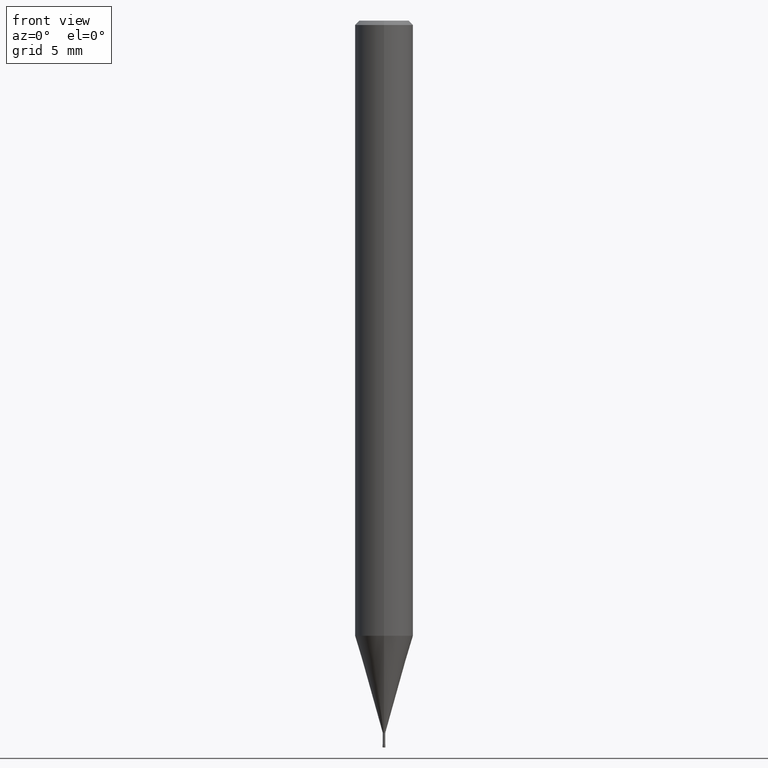
[diagram: clean part render]
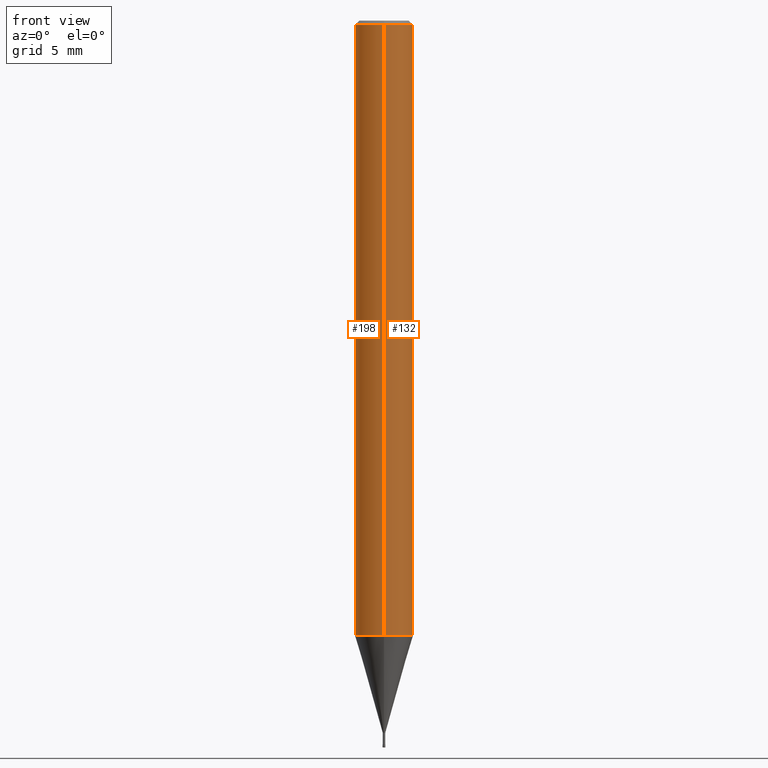
[diagram: same view with one multi-face feature highlighted, each face labeled with its STEP entity id]
A machine part, front view. The highlighted faces form ONE feature: a constant-radius fillet chain: 2 tangent blend faces with common blend radius 2 mm. The faces share edges in the B-rep.
Their STEP definitions:
[1] entity #132 (Cylinder):
#132=ADVANCED_FACE('',(#293),#294,.T.);
#146=EDGE_CURVE('',#222,#194,#309,.T.);
#154=EDGE_CURVE('',#204,#194,#318,.T.);
#176=VERTEX_POINT('',#343);
#194=VERTEX_POINT('',#362);
#204=VERTEX_POINT('',#373);
#222=VERTEX_POINT('',#392);
#224=EDGE_CURVE('',#176,#204,#394,.T.);
#230=EDGE_CURVE('',#222,#176,#401,.T.);
#293=FACE_OUTER_BOUND('',#460,.T.);
#294=CYLINDRICAL_SURFACE('',#461,2.0);
#309=CIRCLE('',#481,2.0);
#318=LINE('',#493,#494);
#343=CARTESIAN_POINT('',(0.0,2.0,-42.322));
#362=CARTESIAN_POINT('',(2.44921270764475E-016,-2.0,-0.299999999999997));
#373=CARTESIAN_POINT('',(2.44921270764475E-016,-2.0,-42.322));
#392=CARTESIAN_POINT('',(0.0,2.0,-0.299999999999997));
#394=CIRCLE('',#591,2.0);
#401=LINE('',#601,#602);
#460=EDGE_LOOP('',(#668,#669,#670,#671));
#461=AXIS2_PLACEMENT_3D('',#672,#673,#674);
#481=AXIS2_PLACEMENT_3D('',#695,#696,#697);
#493=CARTESIAN_POINT('',(2.44921270764475E-016,-2.0,-21.311));
#494=VECTOR('',#707,1.0);
#591=AXIS2_PLACEMENT_3D('',#793,#794,#795);
#601=CARTESIAN_POINT('',(-2.44921270764475E-016,2.0,-21.311));
#602=VECTOR('',#805,1.0);
#668=ORIENTED_EDGE('',*,*,#230,.F.);
#669=ORIENTED_EDGE('',*,*,#146,.T.);
#670=ORIENTED_EDGE('',*,*,#154,.F.);
#671=ORIENTED_EDGE('',*,*,#224,.F.);
#672=CARTESIAN_POINT('',(0.0,0.0,-21.311));
#673=DIRECTION('',(-0.0,-0.0,1.0));
#674=DIRECTION('',(0.0,1.0,0.0));
#695=CARTESIAN_POINT('',(0.0,0.0,-0.299999999999997));
#696=DIRECTION('',(0.0,0.0,-1.0));
#697=DIRECTION('',(0.0,1.0,0.0));
#707=DIRECTION('',(-0.0,-0.0,1.0));
#793=CARTESIAN_POINT('',(0.0,0.0,-42.322));
#794=DIRECTION('',(0.0,0.0,-1.0));
#795=DIRECTION('',(0.0,1.0,0.0));
#805=DIRECTION('',(0.0,0.0,-1.0));
[2] entity #198 (Cylinder):
#138=EDGE_CURVE('',#204,#176,#301,.T.);
#154=EDGE_CURVE('',#204,#194,#318,.T.);
#176=VERTEX_POINT('',#343);
#194=VERTEX_POINT('',#362);
#198=ADVANCED_FACE('',(#366),#367,.T.);
#204=VERTEX_POINT('',#373);
#210=EDGE_CURVE('',#194,#222,#379,.T.);
#222=VERTEX_POINT('',#392);
#230=EDGE_CURVE('',#222,#176,#401,.T.);
#301=CIRCLE('',#469,2.0);
#318=LINE('',#493,#494);
#343=CARTESIAN_POINT('',(0.0,2.0,-42.322));
#362=CARTESIAN_POINT('',(2.44921270764475E-016,-2.0,-0.299999999999997));
#366=FACE_OUTER_BOUND('',#556,.T.);
#367=CYLINDRICAL_SURFACE('',#557,2.0);
#373=CARTESIAN_POINT('',(2.44921270764475E-016,-2.0,-42.322));
#379=CIRCLE('',#571,2.0);
#392=CARTESIAN_POINT('',(0.0,2.0,-0.299999999999997));
#401=LINE('',#601,#602);
#469=AXIS2_PLACEMENT_3D('',#683,#684,#685);
#493=CARTESIAN_POINT('',(2.44921270764475E-016,-2.0,-21.311));
#494=VECTOR('',#707,1.0);
#556=EDGE_LOOP('',(#767,#768,#769,#770));
#557=AXIS2_PLACEMENT_3D('',#771,#772,#773);
#571=AXIS2_PLACEMENT_3D('',#777,#778,#779);
#601=CARTESIAN_POINT('',(-2.44921270764475E-016,2.0,-21.311));
#602=VECTOR('',#805,1.0);
#683=CARTESIAN_POINT('',(0.0,0.0,-42.322));
#684=DIRECTION('',(0.0,0.0,-1.0));
#685=DIRECTION('',(0.0,1.0,0.0));
#707=DIRECTION('',(-0.0,-0.0,1.0));
#767=ORIENTED_EDGE('',*,*,#230,.T.);
#768=ORIENTED_EDGE('',*,*,#138,.F.);
#769=ORIENTED_EDGE('',*,*,#154,.T.);
#770=ORIENTED_EDGE('',*,*,#210,.T.);
#771=CARTESIAN_POINT('',(0.0,0.0,-21.311));
#772=DIRECTION('',(-0.0,-0.0,1.0));
#773=DIRECTION('',(0.0,1.0,0.0));
#777=CARTESIAN_POINT('',(0.0,0.0,-0.299999999999997));
#778=DIRECTION('',(0.0,0.0,-1.0));
#779=DIRECTION('',(0.0,1.0,0.0));
#805=DIRECTION('',(0.0,0.0,-1.0));